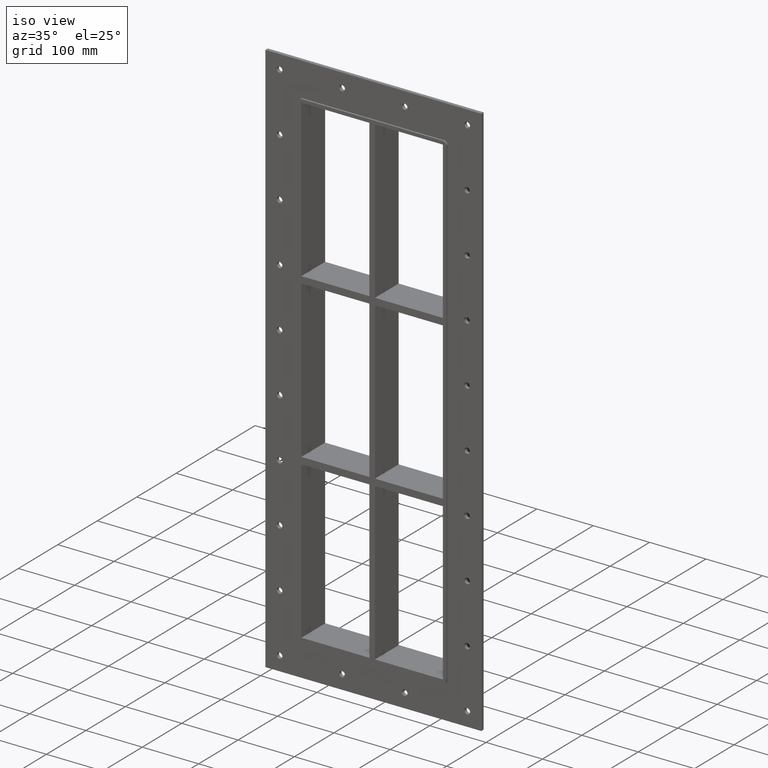
[diagram: clean part render]
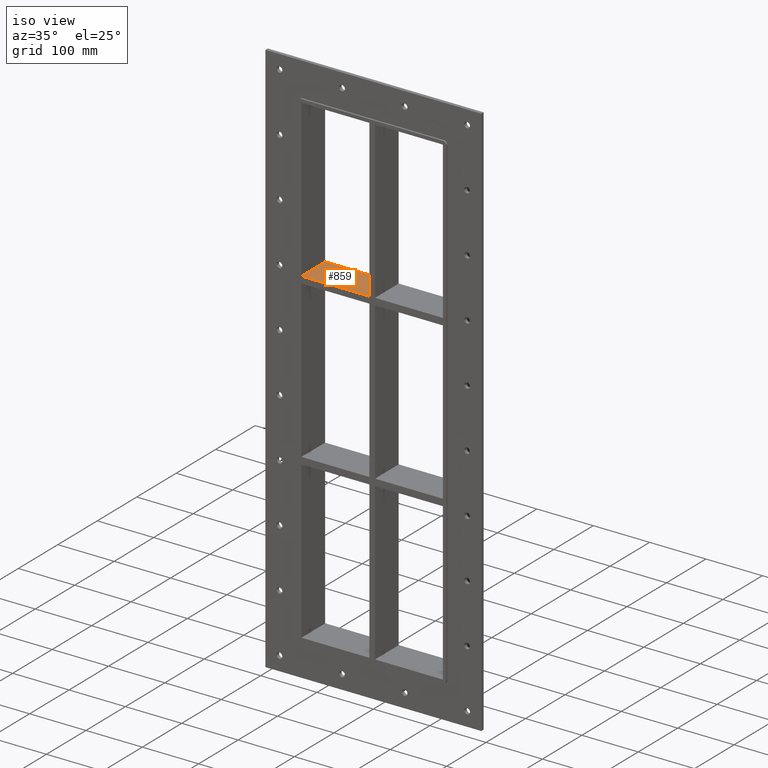
[diagram: same view with one face highlighted and labeled with its STEP entity id]
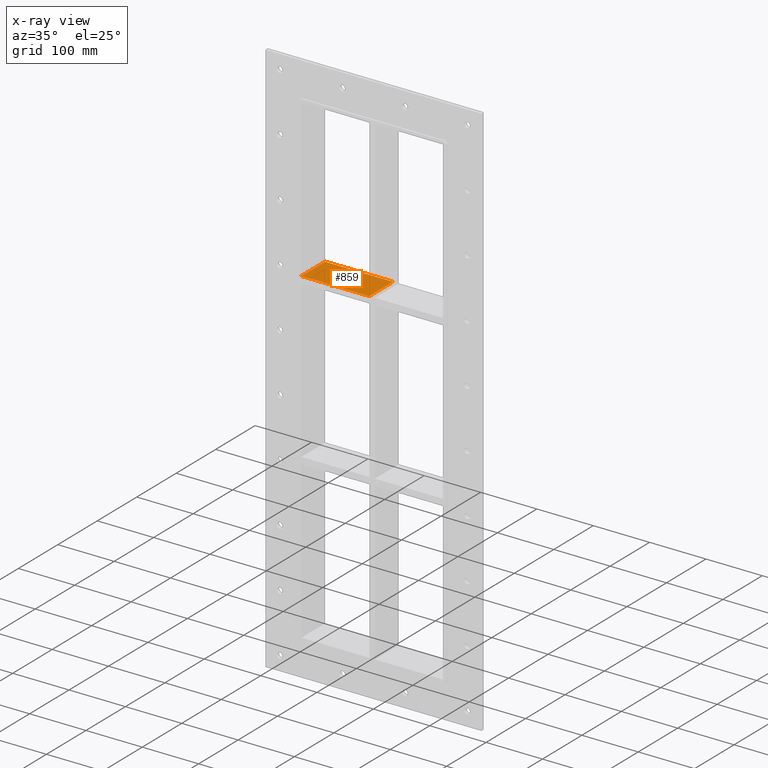
[diagram: x-ray of the same camera — body ghosted, the highlighted face saturated]
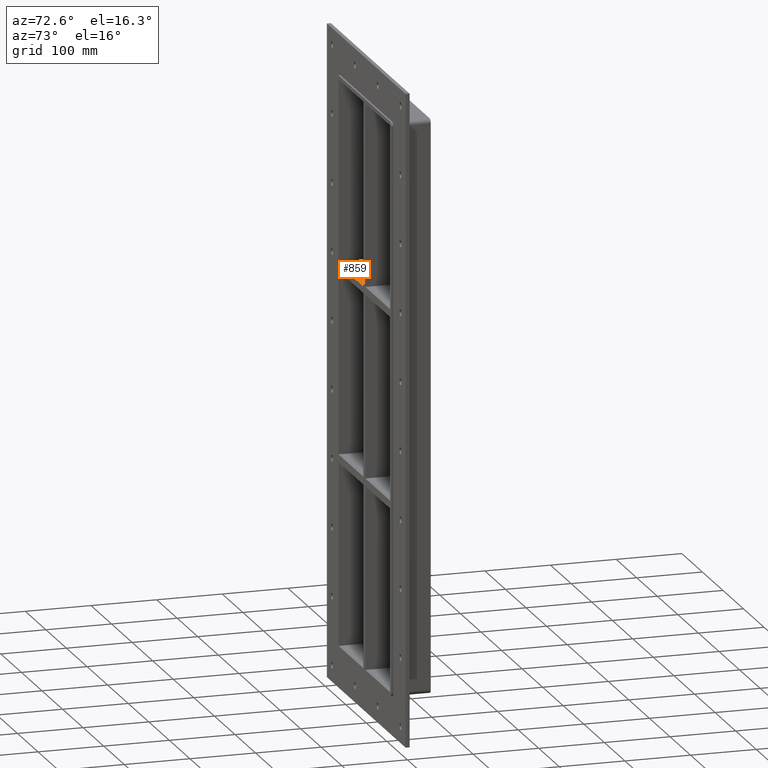
[diagram: same view with one face highlighted and labeled with its STEP entity id]
A machine part, iso view. The second image highlights one B-rep face of the part: STEP entity #859.
The next image is the same camera in x-ray: the body ghosted, the highlighted face saturated — about 0% of this face is hidden behind the body in this view.
A second angle (auxiliary view) of the same face is appended — the face is thin or edge-on in the first view.
In plain terms, the highlighted planar face has unit normal (0, 0, 1).
Its self-contained STEP definition (entity closure, byte-faithful):
#820=CARTESIAN_POINT('',(-125.4999999999997,-3.0,150.99999999999994));
#821=DIRECTION('',(0.0,0.0,1.0));
#822=DIRECTION('',(1.0,0.0,0.0));
#823=AXIS2_PLACEMENT_3D('',#820,#821,#822);
#824=PLANE('',#823);
#825=CARTESIAN_POINT('',(-5.000000000001369,57.0,150.99999999999994));
#826=VERTEX_POINT('',#825);
#827=CARTESIAN_POINT('',(-5.000000000001368,-3.0,150.99999999999994));
#828=VERTEX_POINT('',#827);
#829=CARTESIAN_POINT('',(-5.000000000001368,57.0,150.99999999999994));
#830=DIRECTION('',(0.0,-1.0,0.0));
#831=VECTOR('',#830,60.0);
#832=LINE('',#829,#831);
#833=EDGE_CURVE('',#826,#828,#832,.T.);
#834=ORIENTED_EDGE('',*,*,#833,.F.);
#835=CARTESIAN_POINT('',(-125.4999999999997,57.0,150.99999999999994));
#836=VERTEX_POINT('',#835);
#837=CARTESIAN_POINT('',(-125.4999999999997,57.0,150.99999999999994));
#838=DIRECTION('',(1.0,0.0,0.0));
#839=VECTOR('',#838,120.49999999999834);
#840=LINE('',#837,#839);
#841=EDGE_CURVE('',#836,#826,#840,.T.);
#842=ORIENTED_EDGE('',*,*,#841,.F.);
#843=CARTESIAN_POINT('',(-125.4999999999997,-3.0,150.99999999999994));
#844=VERTEX_POINT('',#843);
#845=CARTESIAN_POINT('',(-125.50000000000003,-3.0,150.99999999999994));
#846=DIRECTION('',(0.0,1.0,0.0));
#847=VECTOR('',#846,60.000000000000007);
#848=LINE('',#845,#847);
#849=EDGE_CURVE('',#844,#836,#848,.T.);
#850=ORIENTED_EDGE('',*,*,#849,.F.);
#851=CARTESIAN_POINT('',(-125.4999999999997,-3.0,150.99999999999994));
#852=DIRECTION('',(1.0,0.0,0.0));
#853=VECTOR('',#852,120.49999999999834);
#854=LINE('',#851,#853);
#855=EDGE_CURVE('',#844,#828,#854,.T.);
#856=ORIENTED_EDGE('',*,*,#855,.T.);
#857=EDGE_LOOP('',(#834,#842,#850,#856));
#858=FACE_OUTER_BOUND('',#857,.T.);
#859=ADVANCED_FACE('',(#858),#824,.T.);